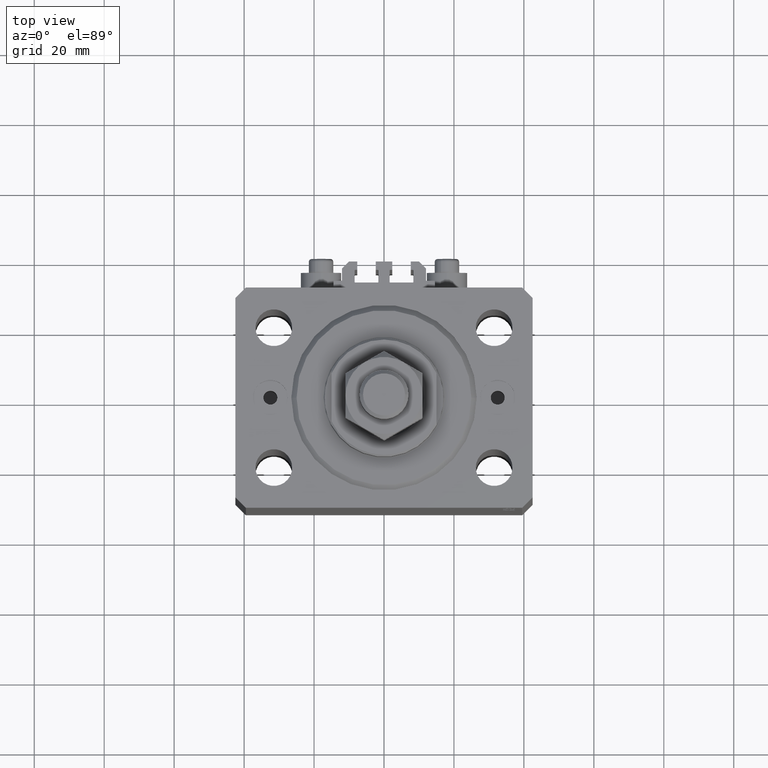
[diagram: clean part render]
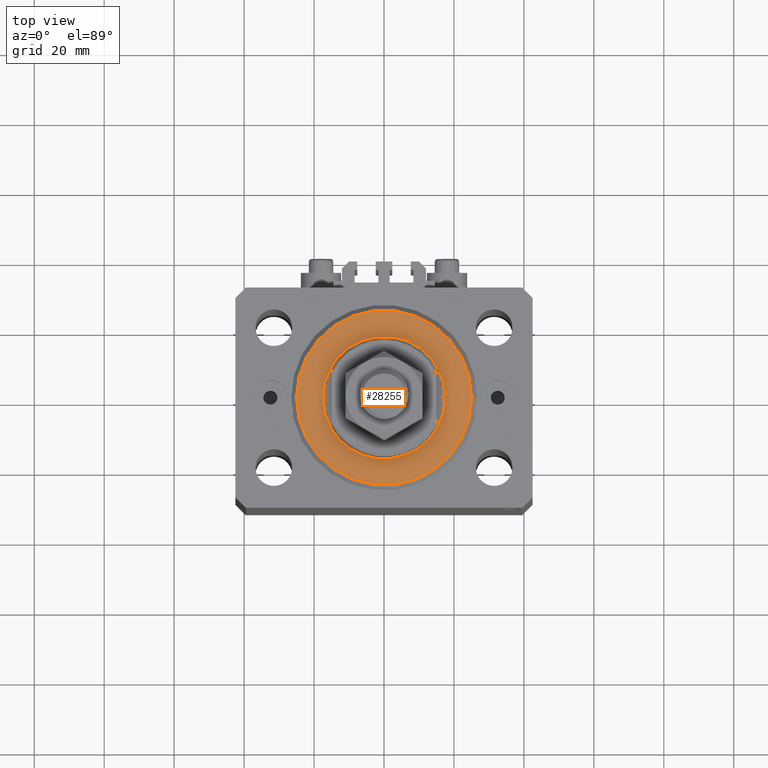
[diagram: same view with one face highlighted and labeled with its STEP entity id]
A machine part, top view. The second image highlights one B-rep face of the part: STEP entity #28255.
In plain terms, the highlighted planar face has unit normal (0, 0, -1).
Its self-contained STEP definition (entity closure, byte-faithful):
#1763 = EDGE_CURVE ( 'NONE', #34854, #41949, #33863, .T. ) ;
#2269 = EDGE_LOOP ( 'NONE', ( #2962, #45701 ) ) ;
#2588 = CARTESIAN_POINT ( 'NONE',  ( 17.50000000000000000, 0.000000000000000000, 2.168404344971008868E-16 ) ) ;
#2962 = ORIENTED_EDGE ( 'NONE', *, *, #1763, .T. ) ;
#4570 = EDGE_CURVE ( 'NONE', #7442, #22969, #33264, .T. ) ;
#4744 = CARTESIAN_POINT ( 'NONE',  ( 0.000000000000000000, 0.000000000000000000, 0.000000000000000000 ) ) ;
#6605 = FACE_OUTER_BOUND ( 'NONE', #2269, .T. ) ;
#7350 = AXIS2_PLACEMENT_3D ( 'NONE', #26079, #48034, #41114 ) ;
#7442 = VERTEX_POINT ( 'NONE', #34520 ) ;
#8937 = DIRECTION ( 'NONE',  ( 1.000000000000000000, 0.000000000000000000, 0.000000000000000000 ) ) ;
#9437 = AXIS2_PLACEMENT_3D ( 'NONE', #4744, #31127, #46410 ) ;
#11518 = CARTESIAN_POINT ( 'NONE',  ( 0.000000000000000000, 0.000000000000000000, 0.000000000000000000 ) ) ;
#12194 = CARTESIAN_POINT ( 'NONE',  ( 24.99999999999998224, 0.000000000000000000, 0.000000000000000000 ) ) ;
#13539 = CIRCLE ( 'NONE', #29288, 24.99999999999998224 ) ;
#14839 = EDGE_CURVE ( 'NONE', #22969, #7442, #22826, .T. ) ;
#17379 = ORIENTED_EDGE ( 'NONE', *, *, #14839, .T. ) ;
#19135 = AXIS2_PLACEMENT_3D ( 'NONE', #11518, #33927, #26780 ) ;
#20735 = CARTESIAN_POINT ( 'NONE',  ( -24.99999999999998224, 3.153465507804433615E-15, 0.000000000000000000 ) ) ;
#20918 = CARTESIAN_POINT ( 'NONE',  ( 0.000000000000000000, 0.000000000000000000, 0.000000000000000000 ) ) ;
#22826 = CIRCLE ( 'NONE', #48023, 17.50000000000000000 ) ;
#22969 = VERTEX_POINT ( 'NONE', #2588 ) ;
#25346 = FACE_BOUND ( 'NONE', #33637, .T. ) ;
#25468 = EDGE_CURVE ( 'NONE', #41949, #34854, #13539, .T. ) ;
#26079 = CARTESIAN_POINT ( 'NONE',  ( 0.000000000000000000, 0.000000000000000000, 0.000000000000000000 ) ) ;
#26780 = DIRECTION ( 'NONE',  ( 1.000000000000000000, 0.000000000000000000, 0.000000000000000000 ) ) ;
#28255 = ADVANCED_FACE ( 'NONE', ( #25346, #6605 ), #32983, .F. ) ;
#29281 = DIRECTION ( 'NONE',  ( 0.000000000000000000, 0.000000000000000000, 1.000000000000000000 ) ) ;
#29288 = AXIS2_PLACEMENT_3D ( 'NONE', #46661, #32343, #8937 ) ;
#31127 = DIRECTION ( 'NONE',  ( -0.000000000000000000, -0.000000000000000000, -1.000000000000000000 ) ) ;
#32343 = DIRECTION ( 'NONE',  ( -0.000000000000000000, -0.000000000000000000, -1.000000000000000000 ) ) ;
#32983 = PLANE ( 'NONE',  #7350 ) ;
#33207 = DIRECTION ( 'NONE',  ( 1.000000000000000000, 0.000000000000000000, 0.000000000000000000 ) ) ;
#33264 = CIRCLE ( 'NONE', #19135, 17.50000000000000000 ) ;
#33637 = EDGE_LOOP ( 'NONE', ( #17379, #48174 ) ) ;
#33863 = CIRCLE ( 'NONE', #9437, 24.99999999999998224 ) ;
#33927 = DIRECTION ( 'NONE',  ( 0.000000000000000000, 0.000000000000000000, 1.000000000000000000 ) ) ;
#34520 = CARTESIAN_POINT ( 'NONE',  ( -17.50000000000000000, 2.143131898507868643E-15, 2.168404344971008868E-16 ) ) ;
#34854 = VERTEX_POINT ( 'NONE', #12194 ) ;
#41114 = DIRECTION ( 'NONE',  ( 1.000000000000000000, 0.000000000000000000, -0.000000000000000000 ) ) ;
#41949 = VERTEX_POINT ( 'NONE', #20735 ) ;
#45701 = ORIENTED_EDGE ( 'NONE', *, *, #25468, .T. ) ;
#46410 = DIRECTION ( 'NONE',  ( 1.000000000000000000, 0.000000000000000000, 0.000000000000000000 ) ) ;
#46661 = CARTESIAN_POINT ( 'NONE',  ( 0.000000000000000000, 0.000000000000000000, 0.000000000000000000 ) ) ;
#48023 = AXIS2_PLACEMENT_3D ( 'NONE', #20918, #29281, #33207 ) ;
#48034 = DIRECTION ( 'NONE',  ( 0.000000000000000000, 0.000000000000000000, 1.000000000000000000 ) ) ;
#48174 = ORIENTED_EDGE ( 'NONE', *, *, #4570, .T. ) ;